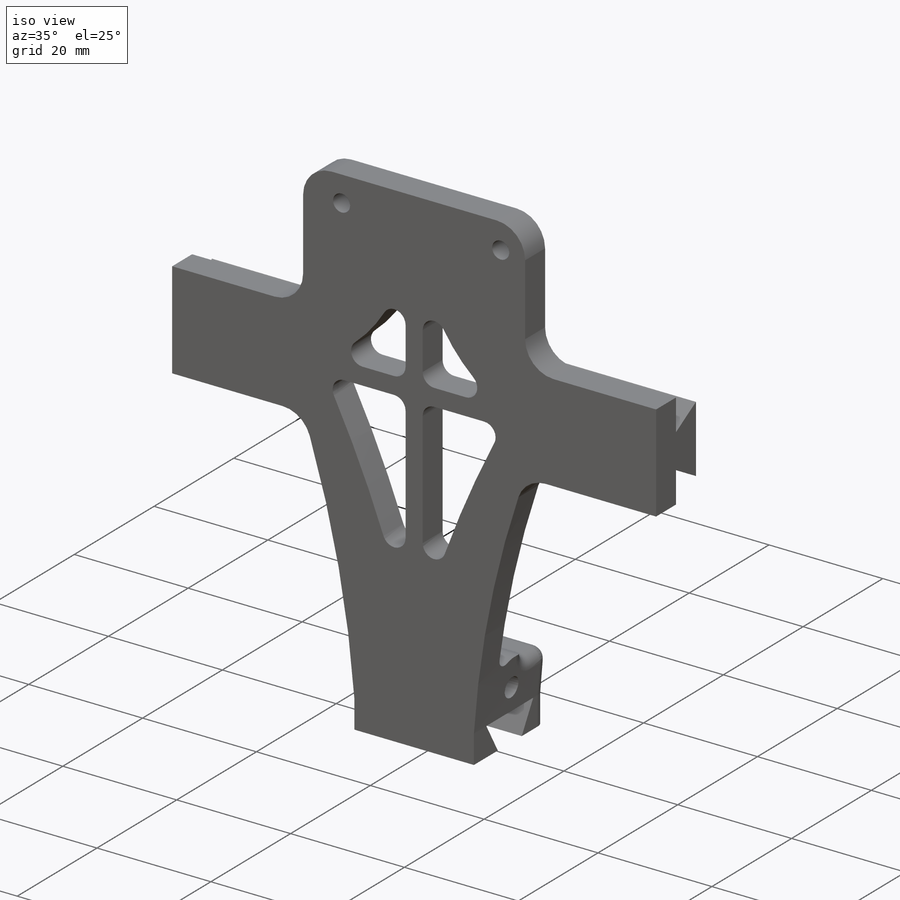
[diagram: iso view]
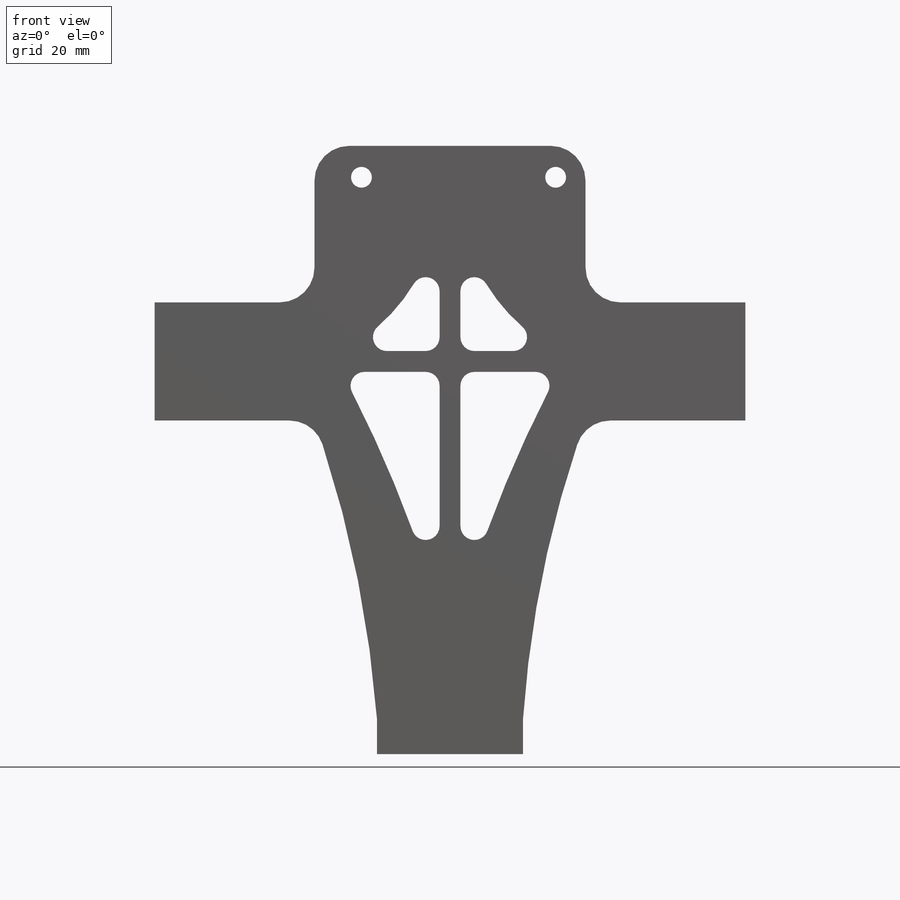
[diagram: front view]
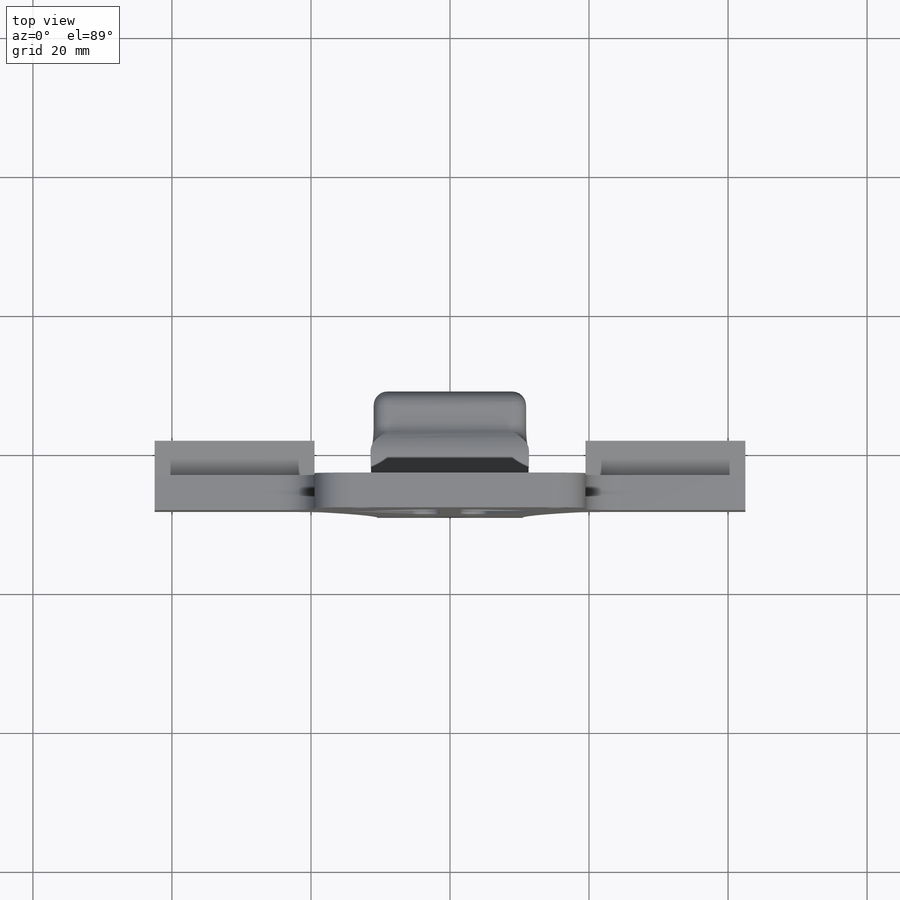
[diagram: top view]
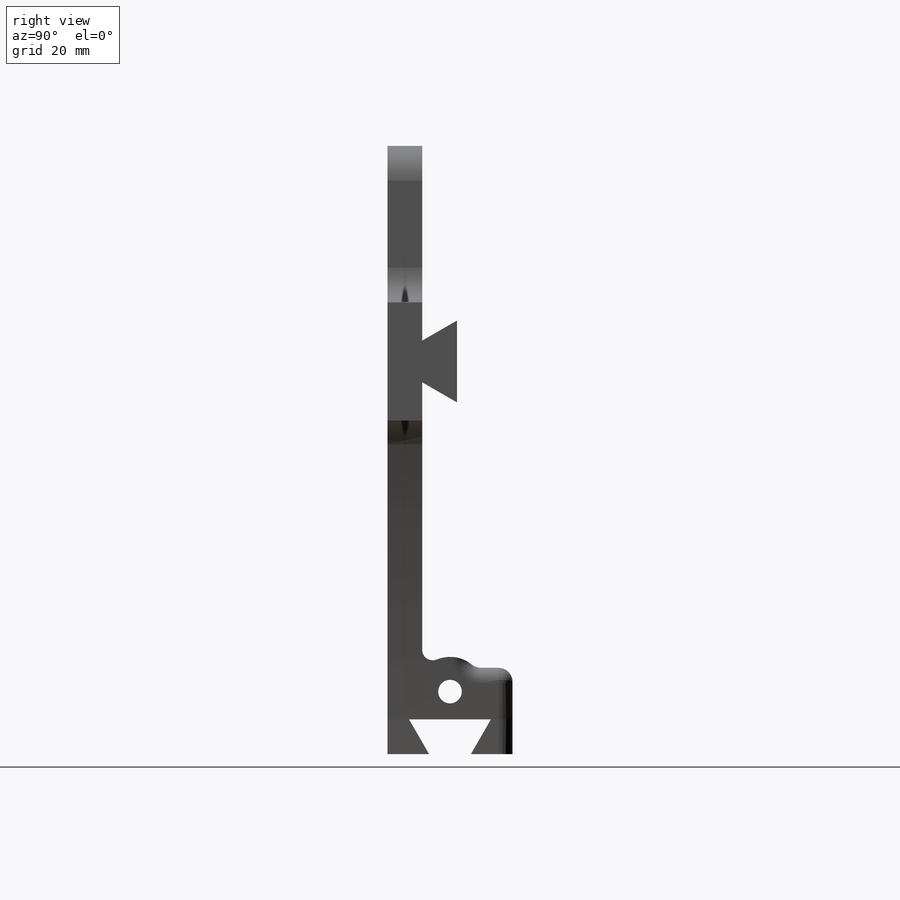
[diagram: right view]
SOLIDWORKS PART (.sldprt)
format: sldprt  version: not decoded by parser v0  size: 595,456 bytes
history: native  units: mm
features: sketch x9, extrude x5, cut_extrude x4, fillet x2, material x1 (+11 scaffold rows collapsed)
feature tree (32):
  scaffold x11  (default folders/planes/origin — collapsed)
  material  "ABS"
  sketch  "Sketch1"  dims[c1.D2=~159.019231mm c1.D1=21.0mm c1.D3=60.0mm c1.D4=17.0mm c1.D5=23.0mm c2.D2=39.0mm]
  extrude  "Extrude1"  Depth=18mm
  sketch  "Sketch2"  dims[c1.D1=6.0mm c1.D2=5.0mm c1.D3=~5.752278mm c2.D3=60.0deg c2.D1=6.0mm c3.D3=~2.47956mm c4.D3=60.0deg]
  extrude  "Extrude2"  [1 undecoded]
  sketch  "Sketch3"  dims[D1=3.4mm D2=4.0mm]
  cut_extrude  "Extrude3"  [1 undecoded]
  extrude  "Extrude4"  [1 undecoded]
  sketch  "Sketch1<4>"  dims[D1=5.0mm]
  sketch  "Sketch4"  dims[c1.D1=6.0mm c1.D2=5.0mm c1.D3=~5.304057mm c2.D3=60.0deg]
  extrude  "Extrude5"  [1 undecoded]
  sketch  "Sketch5"  dims[c1.D2=5.0mm c1.D1=20.0mm c2.D1=50.0mm]
  cut_extrude  "Extrude6"  [1 undecoded]
  sketch  "Sketch6"  dims[c1.D5=4.0mm c1.D9=3.0mm c1.D10=3.0mm c1.D1=55.0mm c1.D2=85.0mm c1.D3=30.0mm c1.D4=3.0mm c2.D3=30.0mm c2.D6=17.06mm c2.D7=45.0mm c2.D4=3.0mm c2.D8=2.0mm]
  extrude  "Extrude11"  [1 undecoded]
  sketch  "Sketch7"  dims[D1=3.0mm D2=3.0mm]
  cut_extrude  "Extrude12"  [1 undecoded]
  fillet  "Fillet6"  Radius=5mm
  fillet  "Fillet7"  Radius=2mm
  sketch  "Sketch8"  dims[D1=3.5mm]
  cut_extrude  "Cut-Extrude1"  Depth=1mm
decode coverage: 13 of 20 modeling features carry decoded parameters
note: ~ marks probable driven/reference dimensions
note: 7 parameter values undecoded
summary: no parameter record found for 7 features
note: suppression state not decoded; provenance and decode notes live in map.json
